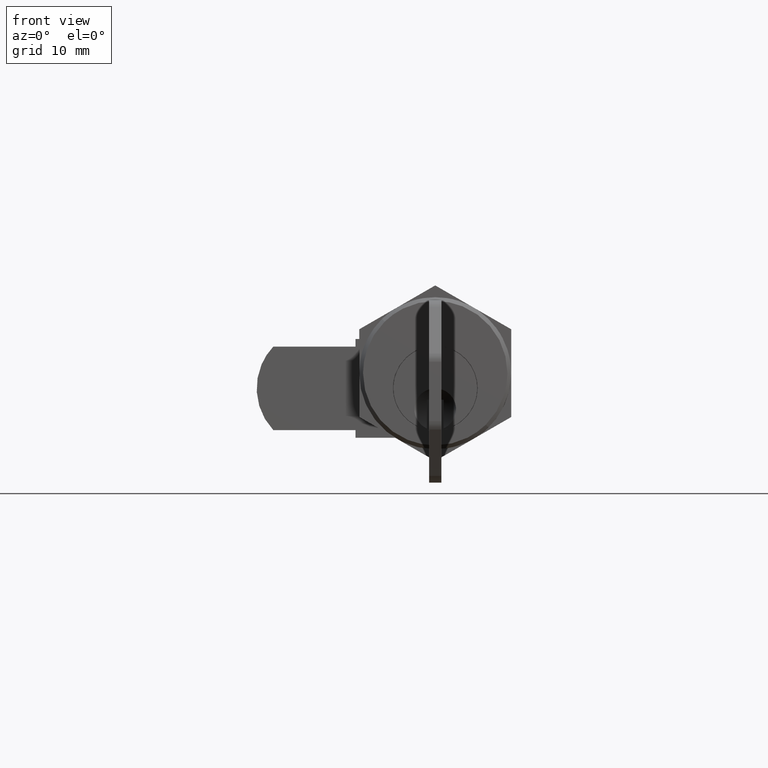
[diagram: clean part render]
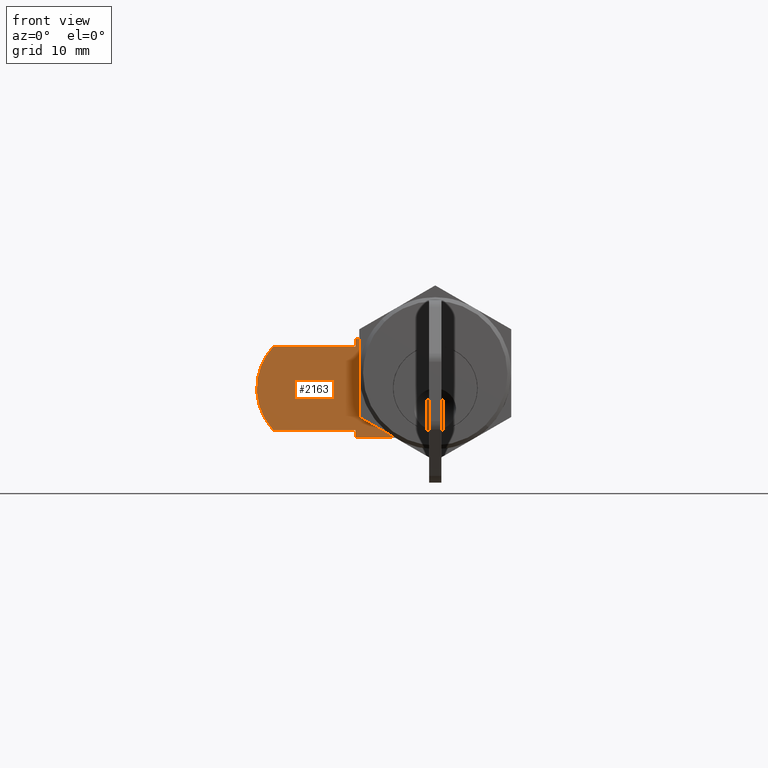
[diagram: same view with one face highlighted and labeled with its STEP entity id]
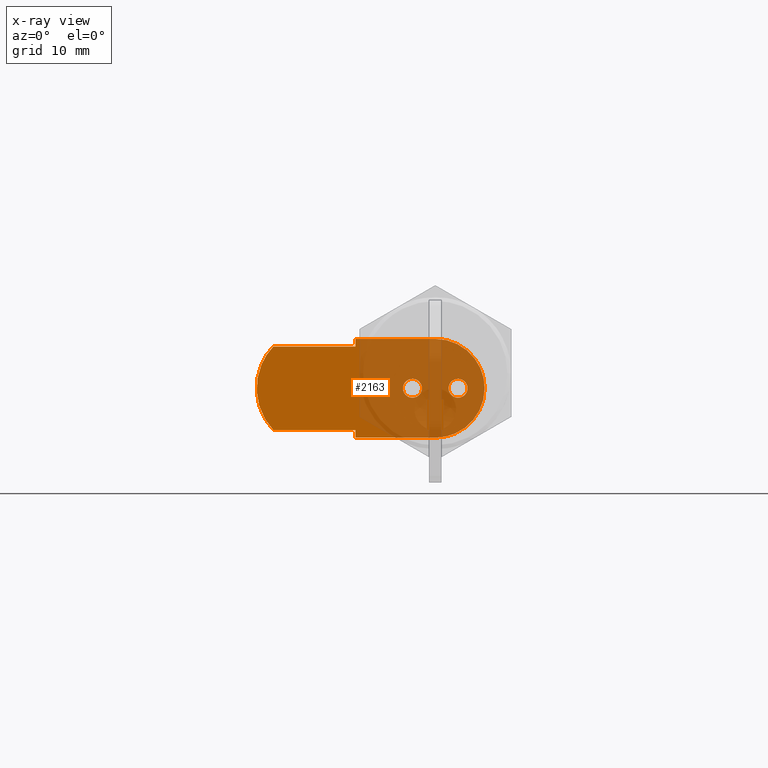
[diagram: x-ray of the same camera — body ghosted, the highlighted face saturated]
A machine part, front view. The second image highlights one B-rep face of the part: STEP entity #2163.
The next image is the same camera in x-ray: the body ghosted, the highlighted face saturated — about 54% of this face is hidden behind the body in this view.
In plain terms, the highlighted face is a freeform B-spline surface patch.
Its self-contained STEP definition (entity closure, byte-faithful):
#1163=CARTESIAN_POINT('',(17.500000000000000,2.045555197686250,-1.192822055247010));
#1164=VERTEX_POINT('',#1163);
#1170=CARTESIAN_POINT('',(17.500000000000000,2.999999999999800,-0.750000000000000));
#1171=VERTEX_POINT('',#1170);
#1172=CARTESIAN_POINT('',(17.500000000000000,2.045555197686250,-1.192822055247010));
#1173=CARTESIAN_POINT('',(17.499999999999989,2.154994974056260,-1.063078655441295));
#1174=CARTESIAN_POINT('',(17.500000000000011,2.345973002824181,-0.913698204486132));
#1175=CARTESIAN_POINT('',(17.500000000000011,2.683287347614565,-0.778970138215855));
#1176=CARTESIAN_POINT('',(17.500000000000000,2.875554266325057,-0.749945585254477));
#1177=CARTESIAN_POINT('',(17.500000000000000,2.999999999999800,-0.750000000000000));
#1178=B_SPLINE_CURVE_WITH_KNOTS('',3,(#1172,#1173,#1174,#1175,#1176,#1177),.UNSPECIFIED.,.F.,.U.,(4,1,1,4),(0.000000051540473,0.509089325798571,0.712709076649019,1.086035425145438),.UNSPECIFIED.);
#1179=EDGE_CURVE('',#1164,#1171,#1178,.T.);
#1181=CARTESIAN_POINT('',(17.500000000000000,4.249999999998491,-2.000001809369260));
#1182=VERTEX_POINT('',#1181);
#1183=CARTESIAN_POINT('',(17.500000000000000,2.999999999999800,-0.750000000000000));
#1184=CARTESIAN_POINT('',(17.500000000000021,3.163654222916020,-0.749827366184898));
#1185=CARTESIAN_POINT('',(17.500000000000011,3.429406902674759,-0.802986962173401));
#1186=CARTESIAN_POINT('',(17.499999999999989,3.743169253511733,-0.980791443908913));
#1187=CARTESIAN_POINT('',(17.500000000000028,3.961752367209525,-1.183872852981781));
#1188=CARTESIAN_POINT('',(17.499999999999961,4.179469317234765,-1.509373455986325));
#1189=CARTESIAN_POINT('',(17.500000000000039,4.250291828495227,-1.805633776375835));
#1190=CARTESIAN_POINT('',(17.500000000000000,4.249999999998491,-2.000001809369260));
#1191=B_SPLINE_CURVE_WITH_KNOTS('',3,(#1183,#1184,#1185,#1186,#1187,#1188,#1189,#1190),.UNSPECIFIED.,.F.,.U.,(4,1,1,1,1,4),(0.000000178224659,0.490886558556461,0.797711371980237,1.073796227100227,1.380611865312467,1.963545700250649),.UNSPECIFIED.);
#1192=EDGE_CURVE('',#1171,#1182,#1191,.T.);
#1194=CARTESIAN_POINT('',(17.500000000000000,2.999999999999800,-3.250000000000000));
#1195=VERTEX_POINT('',#1194);
#1196=CARTESIAN_POINT('',(17.500000000000000,4.249999999998491,-2.000001809369260));
#1197=CARTESIAN_POINT('',(17.500000000000000,4.250183151606140,-2.163652564901437));
#1198=CARTESIAN_POINT('',(17.500000000000000,4.192929075812221,-2.449860879456847));
#1199=CARTESIAN_POINT('',(17.499999999999989,4.006907694706764,-2.760189793501096));
#1200=CARTESIAN_POINT('',(17.500000000000110,3.777502318359205,-2.995290951663881));
#1201=CARTESIAN_POINT('',(17.499999999999570,3.460119933652015,-3.190931376050811));
#1202=CARTESIAN_POINT('',(17.500000000000519,3.163638379809719,-3.250164976919524));
#1203=CARTESIAN_POINT('',(17.500000000000000,2.999999999999800,-3.250000000000000));
#1204=B_SPLINE_CURVE_WITH_KNOTS('',3,(#1196,#1197,#1198,#1199,#1200,#1201,#1202,#1203),.UNSPECIFIED.,.F.,.U.,(4,1,1,1,1,4),(0.000000180698371,0.490886050853201,0.859058349783829,1.073795108086283,1.472657789550224,1.963543660618898),.UNSPECIFIED.);
#1205=EDGE_CURVE('',#1182,#1195,#1204,.T.);
#1207=CARTESIAN_POINT('',(17.500000000000000,2.139557014496946,-2.906717563187558));
#1208=VERTEX_POINT('',#1207);
#1209=CARTESIAN_POINT('',(17.500000000000000,2.999999999999800,-3.250000000000000));
#1210=CARTESIAN_POINT('',(17.500000000000000,2.871488196404632,-3.250043463518680));
#1211=CARTESIAN_POINT('',(17.500000000000028,2.555145639758325,-3.200830526402712));
#1212=CARTESIAN_POINT('',(17.499999999999989,2.275637172086282,-3.036275593409985));
#1213=CARTESIAN_POINT('',(17.500000000000000,2.139557014496946,-2.906717563187558));
#1214=B_SPLINE_CURVE_WITH_KNOTS('',3,(#1209,#1210,#1211,#1212,#1213),.UNSPECIFIED.,.F.,.U.,(4,1,4),(0.000000046317439,0.385552165316452,0.949044968930351),.UNSPECIFIED.);
#1215=EDGE_CURVE('',#1195,#1208,#1214,.T.);
#1309=CARTESIAN_POINT('',(17.500000000000000,1.750000000001110,-1.999998190630728));
#1310=VERTEX_POINT('',#1309);
#1311=CARTESIAN_POINT('',(17.500000000000000,2.139557014496946,-2.906717563187558));
#1312=CARTESIAN_POINT('',(17.500000000000021,2.070555433292043,-2.841262840326331));
#1313=CARTESIAN_POINT('',(17.499999999999989,1.940776969225828,-2.686348019999326));
#1314=CARTESIAN_POINT('',(17.500000000000099,1.790476418610828,-2.380390785491504));
#1315=CARTESIAN_POINT('',(17.499999999999901,1.749916767996216,-2.137385260759138));
#1316=CARTESIAN_POINT('',(17.500000000000000,1.750000000001110,-1.999998190630728));
#1317=B_SPLINE_CURVE_WITH_KNOTS('',3,(#1311,#1312,#1313,#1314,#1315,#1316),.UNSPECIFIED.,.F.,.U.,(4,1,1,4),(0.000000049623811,0.285329886686271,0.602351854054449,1.014501329901291),.UNSPECIFIED.);
#1318=EDGE_CURVE('',#1208,#1310,#1317,.T.);
#1320=CARTESIAN_POINT('',(17.500000000000000,1.750000000001110,-1.999998190630728));
#1321=CARTESIAN_POINT('',(17.500000000000028,1.749910320280188,-1.862875728605749));
#1322=CARTESIAN_POINT('',(17.499999999999979,1.798645818244294,-1.570444137425514));
#1323=CARTESIAN_POINT('',(17.500000000000039,1.945088004715992,-1.311390077520677));
#1324=CARTESIAN_POINT('',(17.500000000000000,2.045555197686250,-1.192822055247010));
#1325=B_SPLINE_CURVE_WITH_KNOTS('',3,(#1320,#1321,#1322,#1323,#1324),.UNSPECIFIED.,.F.,.U.,(4,1,4),(0.000000031378253,0.411342965857758,0.877509461630877),.UNSPECIFIED.);
#1326=EDGE_CURVE('',#1310,#1164,#1325,.T.);
#1510=CARTESIAN_POINT('',(17.500000000000000,-3.954444802313750,-1.192822055247010));
#1511=VERTEX_POINT('',#1510);
#1517=CARTESIAN_POINT('',(17.500000000000000,-3.000000000000200,-0.750000000000000));
#1518=VERTEX_POINT('',#1517);
#1519=CARTESIAN_POINT('',(17.500000000000000,-3.954444802313750,-1.192822055247010));
#1520=CARTESIAN_POINT('',(17.500000000000028,-3.845002379492427,-1.063095768351413));
#1521=CARTESIAN_POINT('',(17.499999999999940,-3.554003551147393,-0.835357586973659));
#1522=CARTESIAN_POINT('',(17.500000000000060,-3.192375063762974,-0.749646497154144));
#1523=CARTESIAN_POINT('',(17.500000000000000,-3.000000000000200,-0.750000000000000));
#1524=B_SPLINE_CURVE_WITH_KNOTS('',3,(#1519,#1520,#1521,#1522,#1523),.UNSPECIFIED.,.F.,.U.,(4,1,4),(0.000000051540465,0.509089325798568,1.086035425145438),.UNSPECIFIED.);
#1525=EDGE_CURVE('',#1511,#1518,#1524,.T.);
#1527=CARTESIAN_POINT('',(17.500000000000000,-1.750000000001510,-2.000001809369262));
#1528=VERTEX_POINT('',#1527);
#1529=CARTESIAN_POINT('',(17.500000000000000,-3.000000000000200,-0.750000000000000));
#1530=CARTESIAN_POINT('',(17.500000000000028,-2.815857825376240,-0.749707967202357));
#1531=CARTESIAN_POINT('',(17.499999999999940,-2.550224812303494,-0.809828656952843));
#1532=CARTESIAN_POINT('',(17.500000000000060,-2.241766930009746,-0.994814373156676));
#1533=CARTESIAN_POINT('',(17.499999999999961,-2.015558399039781,-1.204848952102181));
#1534=CARTESIAN_POINT('',(17.500000000000028,-1.809088673894204,-1.539898301887015));
#1535=CARTESIAN_POINT('',(17.499999999999989,-1.749826079335752,-1.836357093875812));
#1536=CARTESIAN_POINT('',(17.500000000000000,-1.750000000001510,-2.000001809369262));
#1537=B_SPLINE_CURVE_WITH_KNOTS('',3,(#1529,#1530,#1531,#1532,#1533,#1534,#1535,#1536),.UNSPECIFIED.,.F.,.U.,(4,1,1,1,1,4),(0.000000178225045,0.552248525206458,0.797711371980457,1.073796227100391,1.472659320832785,1.963545700250643),.UNSPECIFIED.);
#1538=EDGE_CURVE('',#1518,#1528,#1537,.T.);
#1540=CARTESIAN_POINT('',(17.500000000000000,-3.000000000000200,-3.250000000000000));
#1541=VERTEX_POINT('',#1540);
#1542=CARTESIAN_POINT('',(17.500000000000000,-1.750000000001510,-2.000001809369262));
#1543=CARTESIAN_POINT('',(17.500000000000000,-1.749920228124321,-2.132953911067652));
#1544=CARTESIAN_POINT('',(17.500000000000000,-1.787900576833638,-2.368118866155502));
#1545=CARTESIAN_POINT('',(17.500000000000021,-1.933274431315910,-2.675481465350309));
#1546=CARTESIAN_POINT('',(17.500000000000011,-2.161991975319041,-2.954364669080110));
#1547=CARTESIAN_POINT('',(17.500000000000021,-2.519440301678947,-3.186850381978323));
#1548=CARTESIAN_POINT('',(17.499999999999961,-2.836350138603900,-3.250176355582116));
#1549=CARTESIAN_POINT('',(17.500000000000000,-3.000000000000200,-3.250000000000000));
#1550=B_SPLINE_CURVE_WITH_KNOTS('',3,(#1542,#1543,#1544,#1545,#1546,#1547,#1548,#1549),.UNSPECIFIED.,.F.,.U.,(4,1,1,1,1,4),(0.000000180699045,0.398838690746939,0.705664716053231,1.012426579170809,1.472657789550338,1.963543660618896),.UNSPECIFIED.);
#1551=EDGE_CURVE('',#1528,#1541,#1550,.T.);
#1553=CARTESIAN_POINT('',(17.500000000000000,-3.860442985503054,-2.906717563187558));
#1554=VERTEX_POINT('',#1553);
#1555=CARTESIAN_POINT('',(17.500000000000000,-3.000000000000200,-3.250000000000000));
#1556=CARTESIAN_POINT('',(17.500000000000000,-3.128512532994655,-3.250050236001691));
#1557=CARTESIAN_POINT('',(17.500000000000028,-3.444852665125408,-3.200819934546868));
#1558=CARTESIAN_POINT('',(17.499999999999972,-3.724363451436313,-3.036278996759815));
#1559=CARTESIAN_POINT('',(17.500000000000000,-3.860442985503054,-2.906717563187558));
#1560=B_SPLINE_CURVE_WITH_KNOTS('',3,(#1555,#1556,#1557,#1558,#1559),.UNSPECIFIED.,.F.,.U.,(4,1,4),(0.000000046317573,0.385552165316496,0.949044968930350),.UNSPECIFIED.);
#1561=EDGE_CURVE('',#1541,#1554,#1560,.T.);
#1656=CARTESIAN_POINT('',(17.500000000000000,-4.249999999998890,-1.999998190630728));
#1657=VERTEX_POINT('',#1656);
#1658=CARTESIAN_POINT('',(17.500000000000000,-3.860442985503054,-2.906717563187558));
#1659=CARTESIAN_POINT('',(17.500000000000011,-3.990959575134392,-2.783219551194927));
#1660=CARTESIAN_POINT('',(17.499999999999989,-4.184779113471991,-2.496562119116489));
#1661=CARTESIAN_POINT('',(17.500000000000028,-4.250137898385675,-2.158533388663750));
#1662=CARTESIAN_POINT('',(17.500000000000000,-4.249999999998890,-1.999998190630728));
#1663=B_SPLINE_CURVE_WITH_KNOTS('',3,(#1658,#1659,#1660,#1661,#1662),.UNSPECIFIED.,.F.,.U.,(4,1,4),(0.000000049623913,0.538941779260822,1.014501329901290),.UNSPECIFIED.);
#1664=EDGE_CURVE('',#1554,#1657,#1663,.T.);
#1666=CARTESIAN_POINT('',(17.500000000000000,-4.249999999998890,-1.999998190630728));
#1667=CARTESIAN_POINT('',(17.500000000000060,-4.250224563199892,-1.826284681189480));
#1668=CARTESIAN_POINT('',(17.499999999999940,-4.187994212307501,-1.534005464422046));
#1669=CARTESIAN_POINT('',(17.500000000000039,-4.031199794353267,-1.283531370019937));
#1670=CARTESIAN_POINT('',(17.500000000000000,-3.954444802313750,-1.192822055247010));
#1671=B_SPLINE_CURVE_WITH_KNOTS('',3,(#1666,#1667,#1668,#1669,#1670),.UNSPECIFIED.,.F.,.U.,(4,1,4),(0.000000031378367,0.521019235349504,0.877509461630878),.UNSPECIFIED.);
#1672=EDGE_CURVE('',#1657,#1511,#1671,.T.);
#1835=CARTESIAN_POINT('',(17.500000000000000,3.979971E-016,4.500000000000000));
#1836=VERTEX_POINT('',#1835);
#1837=CARTESIAN_POINT('',(17.500000000000000,-6.499999999999951,-2.000000805231783));
#1838=VERTEX_POINT('',#1837);
#1839=CARTESIAN_POINT('',(17.500000000000000,3.979971E-016,4.500000000000000));
#1840=CARTESIAN_POINT('',(17.499999999999961,-0.664767187700101,4.500302102019816));
#1841=CARTESIAN_POINT('',(17.500000000000050,-1.648351045140905,4.347762525993908));
#1842=CARTESIAN_POINT('',(17.499999999999979,-2.886089753692213,3.852615900954341));
#1843=CARTESIAN_POINT('',(17.500000000000011,-3.712750251129920,3.364021617597064));
#1844=CARTESIAN_POINT('',(17.499999999999989,-4.499494740976362,2.726397144619545));
#1845=CARTESIAN_POINT('',(17.500000000000021,-5.180534799016043,1.975004774002745));
#1846=CARTESIAN_POINT('',(17.499999999999979,-5.800087501797373,1.009768737186588));
#1847=CARTESIAN_POINT('',(17.500000000000028,-6.342090717568263,-0.298435603786983));
#1848=CARTESIAN_POINT('',(17.499999999999989,-6.500260472729281,-1.361838707618945));
#1849=CARTESIAN_POINT('',(17.500000000000000,-6.499999999999951,-2.000000805231783));
#1850=B_SPLINE_CURVE_WITH_KNOTS('',3,(#1839,#1840,#1841,#1842,#1843,#1844,#1845,#1846,#1847,#1848,#1849),.UNSPECIFIED.,.F.,.U.,(4,1,1,1,1,1,1,1,4),(0.000000066180304,1.994181284967976,2.951399080216278,3.988395958435471,4.865849854707532,5.982557094797133,7.019531169904530,8.295829824203793,10.210240642534810),.UNSPECIFIED.);
#1851=EDGE_CURVE('',#1836,#1838,#1850,.T.);
#1853=CARTESIAN_POINT('',(17.500000000000000,0.0,-8.500000000000000));
#1854=VERTEX_POINT('',#1853);
#1855=CARTESIAN_POINT('',(17.500000000000000,-6.499999999999951,-2.000000805231783));
#1856=CARTESIAN_POINT('',(17.500000000000011,-6.500075741180981,-2.478599207488559));
#1857=CARTESIAN_POINT('',(17.499999999999989,-6.387953290855001,-3.488975109140942));
#1858=CARTESIAN_POINT('',(17.500000000000021,-5.936751035225838,-4.750158681051723));
#1859=CARTESIAN_POINT('',(17.500000000000039,-5.292413934708418,-5.824908073829148));
#1860=CARTESIAN_POINT('',(17.499999999999819,-4.478630467664212,-6.780302406078429));
#1861=CARTESIAN_POINT('',(17.500000000000139,-3.519242527156046,-7.510236238467370));
#1862=CARTESIAN_POINT('',(17.499999999999812,-2.377035869480477,-8.085130197416223));
#1863=CARTESIAN_POINT('',(17.500000000000099,-1.276275097011324,-8.419051388387862));
#1864=CARTESIAN_POINT('',(17.500000000000000,-0.398827305651243,-8.500026250059328));
#1865=CARTESIAN_POINT('',(17.500000000000000,0.0,-8.500000000000000));
#1866=B_SPLINE_CURVE_WITH_KNOTS('',3,(#1855,#1856,#1857,#1858,#1859,#1860,#1861,#1862,#1863,#1864,#1865),.UNSPECIFIED.,.F.,.U.,(4,1,1,1,1,1,1,1,4),(0.000000066459531,1.435799934098212,3.031170232023162,3.988395604140823,5.184868227273872,6.780230335193295,7.577911744052960,9.013744201213589,10.210239734845230),.UNSPECIFIED.);
#1867=EDGE_CURVE('',#1838,#1854,#1866,.T.);
#1921=CARTESIAN_POINT('',(17.500000000000000,10.500000000000000,-8.500000000000000));
#1922=VERTEX_POINT('',#1921);
#1923=CARTESIAN_POINT('',(17.500000000000000,10.500000000000000,-8.500000000000000));
#1924=CARTESIAN_POINT('',(17.500000000000000,0.0,-8.500000000000000));
#1925=QUASI_UNIFORM_CURVE('',1,(#1923,#1924),.UNSPECIFIED.,.F.,.U.);
#1926=EDGE_CURVE('',#1922,#1854,#1925,.T.);
#1949=CARTESIAN_POINT('',(17.500000000000000,10.500000000000000,-7.500000000000000));
#1950=VERTEX_POINT('',#1949);
#1951=CARTESIAN_POINT('',(17.500000000000000,10.500000000000000,-7.500000000000000));
#1952=CARTESIAN_POINT('',(17.500000000000000,10.500000000000000,-8.500000000000000));
#1953=QUASI_UNIFORM_CURVE('',1,(#1951,#1952),.UNSPECIFIED.,.F.,.U.);
#1954=EDGE_CURVE('',#1950,#1922,#1953,.T.);
#1977=CARTESIAN_POINT('',(17.500000000000000,21.309475019310948,-7.500000000000000));
#1978=VERTEX_POINT('',#1977);
#1979=CARTESIAN_POINT('',(17.500000000000000,21.309475019310948,-7.500000000000000));
#1980=CARTESIAN_POINT('',(17.500000000000000,10.500000000000000,-7.500000000000000));
#1981=QUASI_UNIFORM_CURVE('',1,(#1979,#1980),.UNSPECIFIED.,.F.,.U.);
#1982=EDGE_CURVE('',#1978,#1950,#1981,.T.);
#2014=CARTESIAN_POINT('',(17.500000000000000,21.309475019310899,3.500000000000000));
#2015=VERTEX_POINT('',#2014);
#2016=CARTESIAN_POINT('',(17.500000000000000,21.309475019310948,-7.500000000000000));
#2017=CARTESIAN_POINT('',(17.500000000000011,21.678665245808681,-7.110122110685165));
#2018=CARTESIAN_POINT('',(17.500000000000000,22.376960104229649,-6.205412476363312));
#2019=CARTESIAN_POINT('',(17.499999999999989,23.087184894905459,-4.712960445990785));
#2020=CARTESIAN_POINT('',(17.500000000000011,23.489285339247740,-3.047514709519365));
#2021=CARTESIAN_POINT('',(17.500000000000000,23.531585484340429,-1.617822174803396));
#2022=CARTESIAN_POINT('',(17.500000000000000,23.320939911695270,-0.145689673564131));
#2023=CARTESIAN_POINT('',(17.500000000000021,22.916551211810749,1.125664440996464));
#2024=CARTESIAN_POINT('',(17.499999999999979,22.205646755037741,2.434701597017545));
#2025=CARTESIAN_POINT('',(17.500000000000011,21.635224876035888,3.155982224870328));
#2026=CARTESIAN_POINT('',(17.500000000000000,21.309475019310899,3.500000000000000));
#2027=B_SPLINE_CURVE_WITH_KNOTS('',3,(#2016,#2017,#2018,#2019,#2020,#2021,#2022,#2023,#2024,#2025,#2026),.UNSPECIFIED.,.F.,.U.,(4,1,1,1,1,1,1,1,4),(0.000000041878440,1.610833477878455,3.411207568516632,4.927312360851425,6.727632248014207,7.675207308605717,9.380812503415541,10.707402528459539,12.128723139912060),.UNSPECIFIED.);
#2028=EDGE_CURVE('',#1978,#2015,#2027,.T.);
#2060=CARTESIAN_POINT('',(17.500000000000000,10.500000000000000,3.500000000000000));
#2061=VERTEX_POINT('',#2060);
#2062=CARTESIAN_POINT('',(17.500000000000000,10.500000000000000,3.500000000000000));
#2063=CARTESIAN_POINT('',(17.500000000000000,21.309475019310899,3.500000000000000));
#2064=QUASI_UNIFORM_CURVE('',1,(#2062,#2063),.UNSPECIFIED.,.F.,.U.);
#2065=EDGE_CURVE('',#2061,#2015,#2064,.T.);
#2088=CARTESIAN_POINT('',(17.500000000000000,10.500000000000000,4.500000000000000));
#2089=VERTEX_POINT('',#2088);
#2090=CARTESIAN_POINT('',(17.500000000000000,10.500000000000000,4.500000000000000));
#2091=CARTESIAN_POINT('',(17.500000000000000,10.500000000000000,3.500000000000000));
#2092=QUASI_UNIFORM_CURVE('',1,(#2090,#2091),.UNSPECIFIED.,.F.,.U.);
#2093=EDGE_CURVE('',#2089,#2061,#2092,.T.);
#2116=CARTESIAN_POINT('',(17.500000000000000,3.979971E-016,4.500000000000000));
#2117=CARTESIAN_POINT('',(17.500000000000000,10.500000000000000,4.500000000000000));
#2118=QUASI_UNIFORM_CURVE('',1,(#2116,#2117),.UNSPECIFIED.,.F.,.U.);
#2119=EDGE_CURVE('',#1836,#2089,#2118,.T.);
#2131=CARTESIAN_POINT('',(17.500000000000000,-7.998497262327320,5.149349974803477));
#2132=CARTESIAN_POINT('',(17.500000000000000,24.998444422809708,5.149349974803477));
#2133=CARTESIAN_POINT('',(17.500000000000000,-7.998497262327320,-9.149350323490651));
#2134=CARTESIAN_POINT('',(17.500000000000000,24.998444422809708,-9.149350323490651));
#2135=B_SPLINE_SURFACE_WITH_KNOTS('',1,1,((#2131,#2133),(#2132,#2134)),.UNSPECIFIED.,.F.,.F.,.U.,(2,2),(2,2),(0.0,32.996941685137031),(0.0,14.298700298294129),.UNSPECIFIED.);
#2136=ORIENTED_EDGE('',*,*,#2119,.T.);
#2137=ORIENTED_EDGE('',*,*,#2093,.T.);
#2138=ORIENTED_EDGE('',*,*,#2065,.T.);
#2139=ORIENTED_EDGE('',*,*,#2028,.F.);
#2140=ORIENTED_EDGE('',*,*,#1982,.T.);
#2141=ORIENTED_EDGE('',*,*,#1954,.T.);
#2142=ORIENTED_EDGE('',*,*,#1926,.T.);
#2143=ORIENTED_EDGE('',*,*,#1867,.F.);
#2144=ORIENTED_EDGE('',*,*,#1851,.F.);
#2145=EDGE_LOOP('',(#2136,#2137,#2138,#2139,#2140,#2141,#2142,#2143,#2144));
#2146=FACE_OUTER_BOUND('',#2145,.T.);
#2147=ORIENTED_EDGE('',*,*,#1538,.F.);
#2148=ORIENTED_EDGE('',*,*,#1525,.F.);
#2149=ORIENTED_EDGE('',*,*,#1672,.F.);
#2150=ORIENTED_EDGE('',*,*,#1664,.F.);
#2151=ORIENTED_EDGE('',*,*,#1561,.F.);
#2152=ORIENTED_EDGE('',*,*,#1551,.F.);
#2153=EDGE_LOOP('',(#2147,#2148,#2149,#2150,#2151,#2152));
#2154=FACE_BOUND('',#2153,.T.);
#2155=ORIENTED_EDGE('',*,*,#1192,.F.);
#2156=ORIENTED_EDGE('',*,*,#1179,.F.);
#2157=ORIENTED_EDGE('',*,*,#1326,.F.);
#2158=ORIENTED_EDGE('',*,*,#1318,.F.);
#2159=ORIENTED_EDGE('',*,*,#1215,.F.);
#2160=ORIENTED_EDGE('',*,*,#1205,.F.);
#2161=EDGE_LOOP('',(#2155,#2156,#2157,#2158,#2159,#2160));
#2162=FACE_BOUND('',#2161,.T.);
#2163=ADVANCED_FACE('',(#2146,#2154,#2162),#2135,.T.);